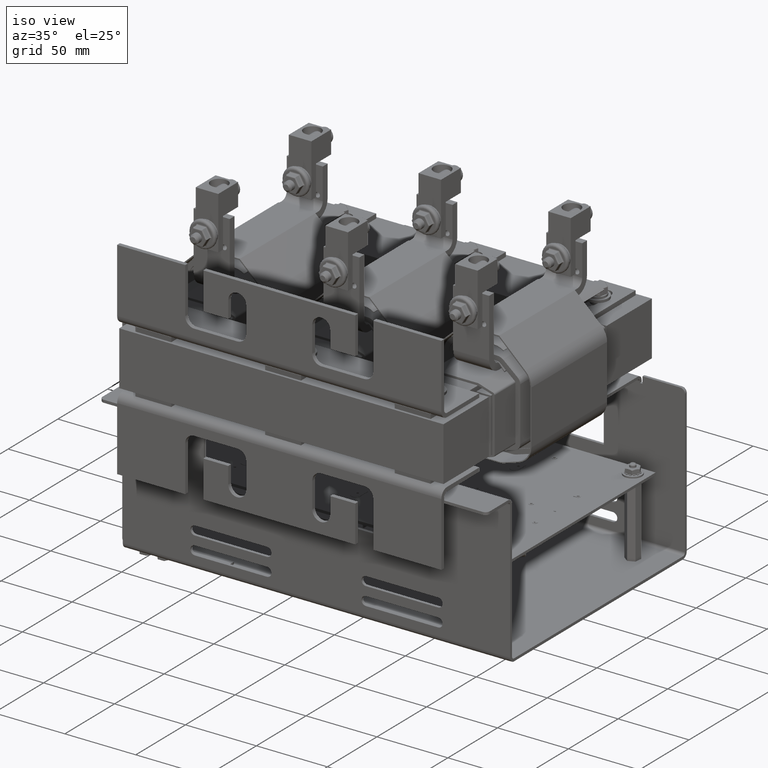
[diagram: clean part render]
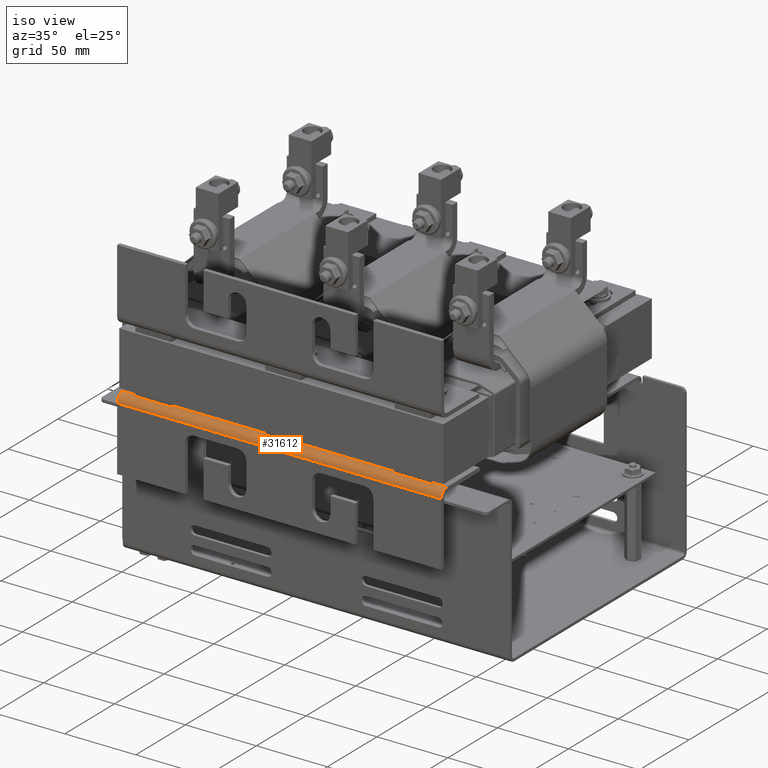
[diagram: same view with one face highlighted and labeled with its STEP entity id]
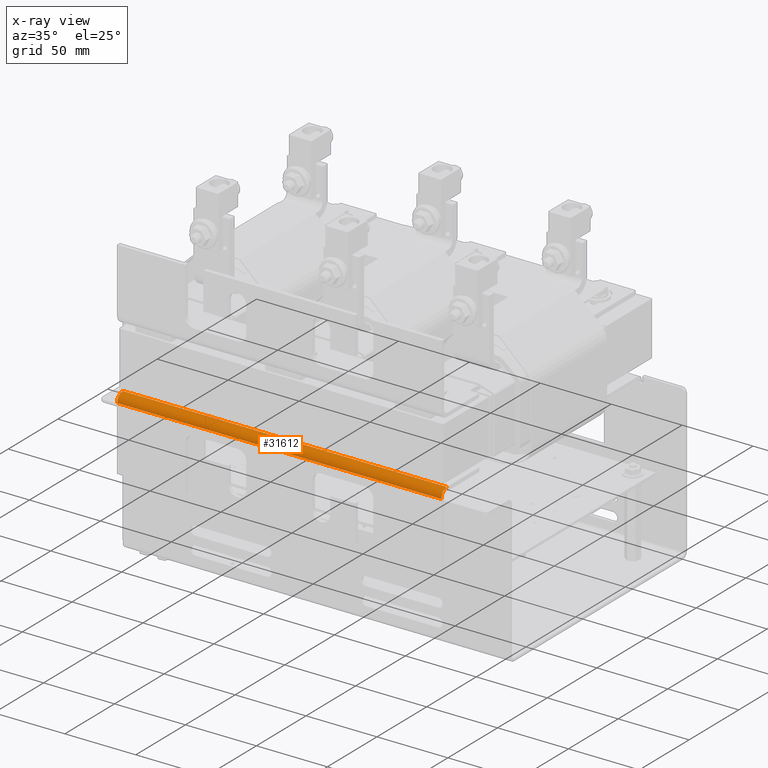
[diagram: x-ray of the same camera — body ghosted, the highlighted face saturated]
A machine part, iso view. The second image highlights one B-rep face of the part: STEP entity #31612.
The next image is the same camera in x-ray: the body ghosted, the highlighted face saturated — about 0% of this face is hidden behind the body in this view.
In plain terms, the highlighted cylindrical surface (edge-blend (fillet) strip) has radius 5.588 mm, axis along (-1, -0, -0).
Its self-contained STEP definition (entity closure, byte-faithful):
#1979=CIRCLE('',#34228,0.22);
#1981=CIRCLE('',#34235,0.22);
#3106=CYLINDRICAL_SURFACE('',#34234,0.22);
#3683=FACE_OUTER_BOUND('',#5463,.T.);
#5463=EDGE_LOOP('',(#21477,#21478,#21479,#21480));
#7514=LINE('',#46288,#10604);
#7538=LINE('',#46351,#10628);
#10604=VECTOR('',#37259,0.393700787401575);
#10628=VECTOR('',#37323,0.393700787401575);
#13689=VERTEX_POINT('',#46285);
#13690=VERTEX_POINT('',#46287);
#13705=VERTEX_POINT('',#46333);
#13709=VERTEX_POINT('',#46349);
#16740=EDGE_CURVE('',#13690,#13689,#7514,.T.);
#16765=EDGE_CURVE('',#13689,#13705,#1979,.T.);
#16773=EDGE_CURVE('',#13709,#13705,#7538,.T.);
#16774=EDGE_CURVE('',#13709,#13690,#1981,.T.);
#21477=ORIENTED_EDGE('',*,*,#16774,.T.);
#21478=ORIENTED_EDGE('',*,*,#16740,.T.);
#21479=ORIENTED_EDGE('',*,*,#16765,.T.);
#21480=ORIENTED_EDGE('',*,*,#16773,.F.);
#31612=ADVANCED_FACE('',(#3683),#3106,.T.);
#34228=AXIS2_PLACEMENT_3D('',#46335,#37305,#37306);
#34234=AXIS2_PLACEMENT_3D('',#46352,#37324,#37325);
#34235=AXIS2_PLACEMENT_3D('',#46353,#37326,#37327);
#37259=DIRECTION('',(0.,0.,-1.));
#37305=DIRECTION('center_axis',(0.,0.,1.));
#37306=DIRECTION('ref_axis',(0.,1.,0.));
#37323=DIRECTION('',(0.,0.,-1.));
#37324=DIRECTION('center_axis',(0.,0.,1.));
#37325=DIRECTION('ref_axis',(0.,1.,0.));
#37326=DIRECTION('center_axis',(0.,0.,-1.));
#37327=DIRECTION('ref_axis',(0.,1.,0.));
#46285=CARTESIAN_POINT('',(1.25089678142432,-0.514079182801154,-4.5));
#46287=CARTESIAN_POINT('',(1.25089678142432,-0.514079182801154,4.5));
#46288=CARTESIAN_POINT('',(1.25089678142432,-0.514079182801154,0.));
#46333=CARTESIAN_POINT('',(1.47089678142432,-0.294079182801155,-4.5));
#46335=CARTESIAN_POINT('Origin',(1.25089678142432,-0.294079182801155,-4.5));
#46349=CARTESIAN_POINT('',(1.47089678142432,-0.294079182801155,4.5));
#46351=CARTESIAN_POINT('',(1.47089678142432,-0.294079182801155,0.));
#46352=CARTESIAN_POINT('Origin',(1.25089678142432,-0.294079182801155,0.));
#46353=CARTESIAN_POINT('Origin',(1.25089678142432,-0.294079182801155,4.5));